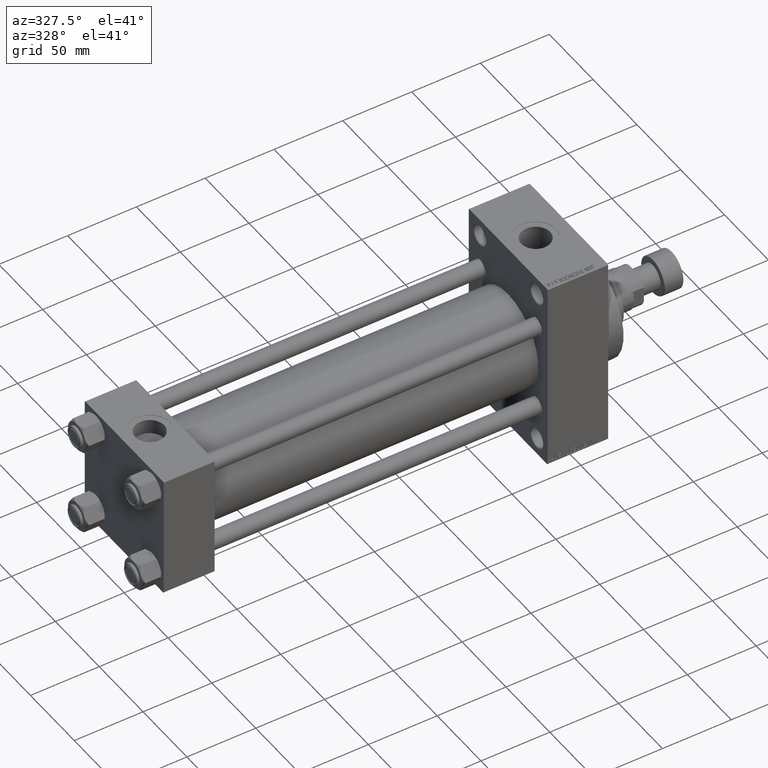
[diagram: clean part render]
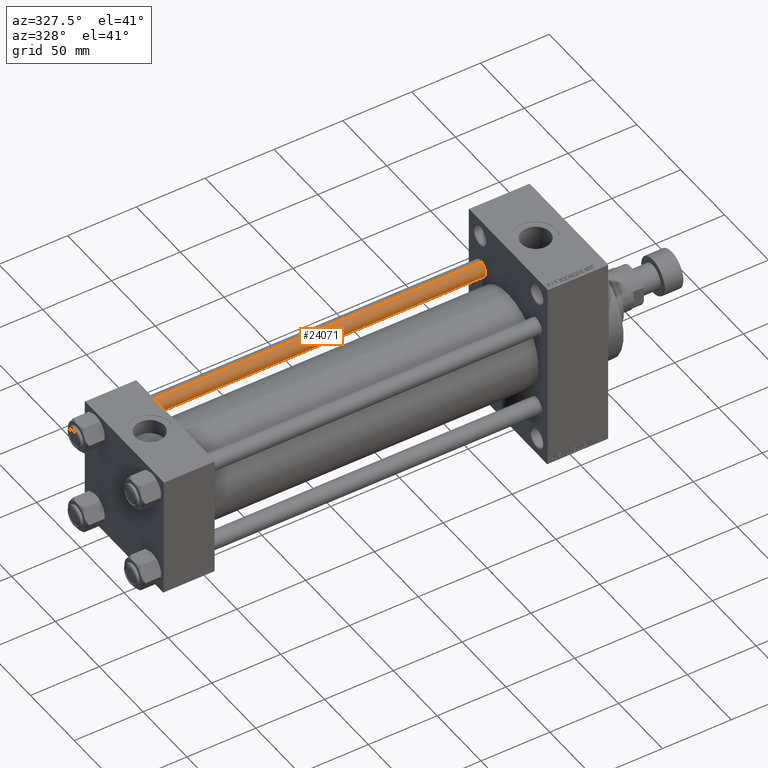
[diagram: same view with one face highlighted and labeled with its STEP entity id]
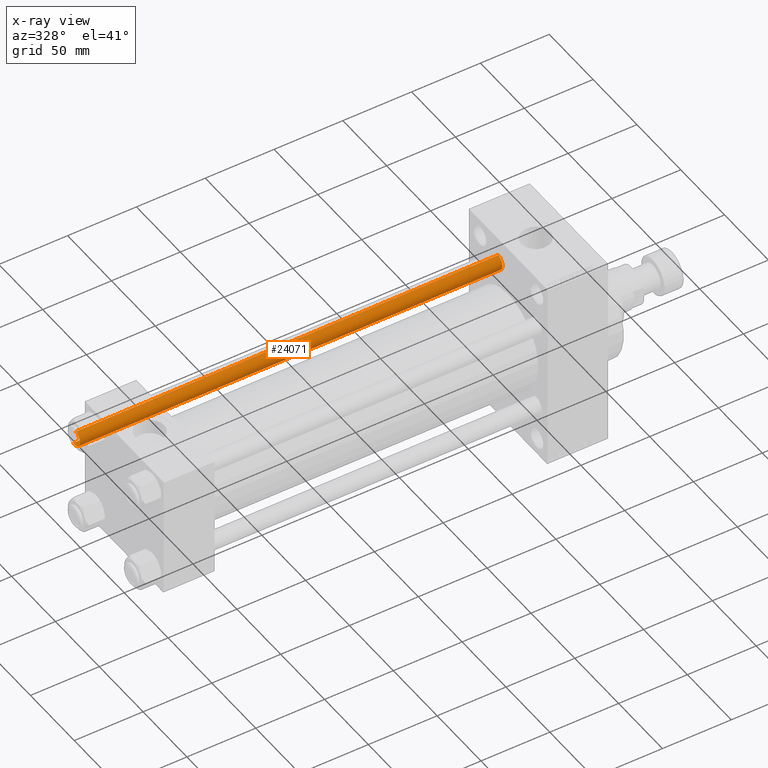
[diagram: x-ray of the same camera — body ghosted, the highlighted face saturated]
A machine part, auxiliary view. The second image highlights one B-rep face of the part: STEP entity #24071.
The next image is the same camera in x-ray: the body ghosted, the highlighted face saturated — about 0% of this face is hidden behind the body in this view.
In plain terms, the highlighted cylindrical surface (edge-blend (fillet) strip) has radius 6 mm, axis along (-1, -0, 0).
Its self-contained STEP definition (entity closure, byte-faithful):
#2564 = VERTEX_POINT ( 'NONE', #41834 ) ;
#2855 = VECTOR ( 'NONE', #49565, 1000.000000000000000 ) ;
#4815 = AXIS2_PLACEMENT_3D ( 'NONE', #44635, #48663, #44889 ) ;
#7273 = VERTEX_POINT ( 'NONE', #41404 ) ;
#8024 = FACE_OUTER_BOUND ( 'NONE', #22780, .T. ) ;
#8111 = DIRECTION ( 'NONE',  ( -0.000000000000000000, -0.000000000000000000, -1.000000000000000000 ) ) ;
#9960 = ORIENTED_EDGE ( 'NONE', *, *, #46884, .T. ) ;
#10133 = ORIENTED_EDGE ( 'NONE', *, *, #15930, .F. ) ;
#15724 = CIRCLE ( 'NONE', #32565, 6.000000000000000888 ) ;
#15930 = EDGE_CURVE ( 'NONE', #42469, #24365, #27703, .T. ) ;
#19361 = LINE ( 'NONE', #34689, #2855 ) ;
#19579 = DIRECTION ( 'NONE',  ( -1.000000000000000000, 0.000000000000000000, 0.000000000000000000 ) ) ;
#22173 = AXIS2_PLACEMENT_3D ( 'NONE', #35166, #46497, #19579 ) ;
#22658 = ORIENTED_EDGE ( 'NONE', *, *, #35967, .T. ) ;
#22780 = EDGE_LOOP ( 'NONE', ( #10133, #9960, #23482, #22658 ) ) ;
#23482 = ORIENTED_EDGE ( 'NONE', *, *, #47161, .T. ) ;
#24071 = ADVANCED_FACE ( 'NONE', ( #8024 ), #34910, .T. ) ;
#24365 = VERTEX_POINT ( 'NONE', #25844 ) ;
#25130 = DIRECTION ( 'NONE',  ( 0.000000000000000000, 0.000000000000000000, -1.000000000000000000 ) ) ;
#25844 = CARTESIAN_POINT ( 'NONE',  ( 6.000000000000000888, 7.347880794884120722E-16, 0.5000000000000559552 ) ) ;
#27703 = LINE ( 'NONE', #31485, #42057 ) ;
#31485 = CARTESIAN_POINT ( 'NONE',  ( 6.000000000000000888, 7.347880794884120722E-16, 308.0000000000000000 ) ) ;
#32565 = AXIS2_PLACEMENT_3D ( 'NONE', #48275, #25130, #40715 ) ;
#34689 = CARTESIAN_POINT ( 'NONE',  ( -6.000000000000000888, 0.000000000000000000, 308.0000000000000000 ) ) ;
#34910 = CYLINDRICAL_SURFACE ( 'NONE', #22173, 6.000000000000000888 ) ;
#35166 = CARTESIAN_POINT ( 'NONE',  ( 0.000000000000000000, 0.000000000000000000, 308.0000000000000000 ) ) ;
#35307 = CARTESIAN_POINT ( 'NONE',  ( 6.000000000000000888, 7.347880794884120722E-16, 307.4999999999999432 ) ) ;
#35967 = EDGE_CURVE ( 'NONE', #7273, #24365, #41766, .T. ) ;
#40715 = DIRECTION ( 'NONE',  ( 1.000000000000000000, 0.000000000000000000, 0.000000000000000000 ) ) ;
#41404 = CARTESIAN_POINT ( 'NONE',  ( -6.000000000000000888, 0.000000000000000000, 0.5000000000000559552 ) ) ;
#41766 = CIRCLE ( 'NONE', #4815, 6.000000000000000888 ) ;
#41834 = CARTESIAN_POINT ( 'NONE',  ( -6.000000000000000888, 0.000000000000000000, 307.4999999999999432 ) ) ;
#42057 = VECTOR ( 'NONE', #8111, 1000.000000000000000 ) ;
#42469 = VERTEX_POINT ( 'NONE', #35307 ) ;
#44635 = CARTESIAN_POINT ( 'NONE',  ( 0.000000000000000000, 0.000000000000000000, 0.5000000000000559552 ) ) ;
#44889 = DIRECTION ( 'NONE',  ( 1.000000000000000000, 0.000000000000000000, 0.000000000000000000 ) ) ;
#46497 = DIRECTION ( 'NONE',  ( -0.000000000000000000, -0.000000000000000000, -1.000000000000000000 ) ) ;
#46884 = EDGE_CURVE ( 'NONE', #42469, #2564, #15724, .T. ) ;
#47161 = EDGE_CURVE ( 'NONE', #2564, #7273, #19361, .T. ) ;
#48275 = CARTESIAN_POINT ( 'NONE',  ( 0.000000000000000000, 0.000000000000000000, 307.4999999999999432 ) ) ;
#48663 = DIRECTION ( 'NONE',  ( -0.000000000000000000, -0.000000000000000000, 1.000000000000000000 ) ) ;
#49565 = DIRECTION ( 'NONE',  ( -0.000000000000000000, -0.000000000000000000, -1.000000000000000000 ) ) ;